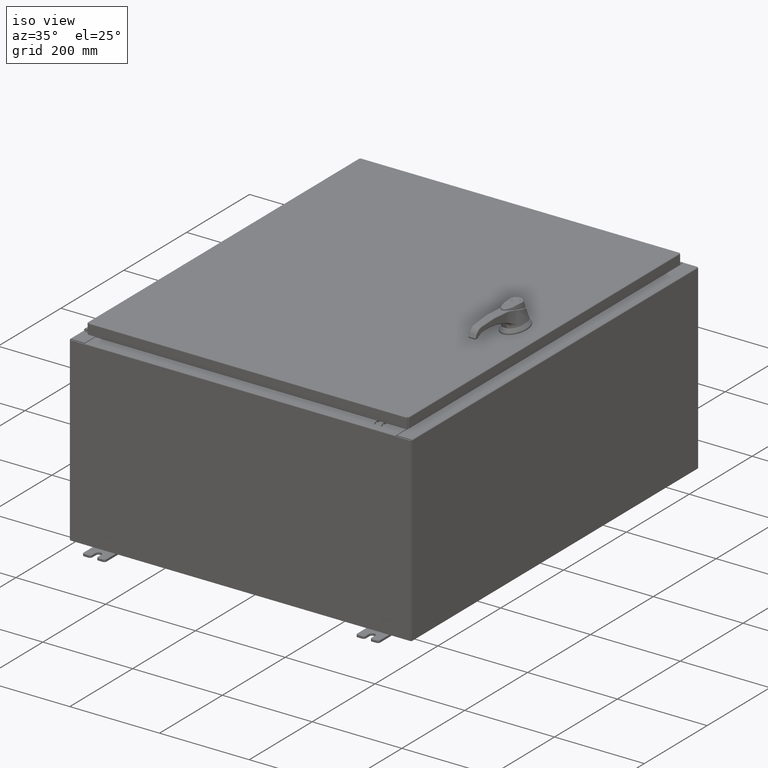
[diagram: clean part render]
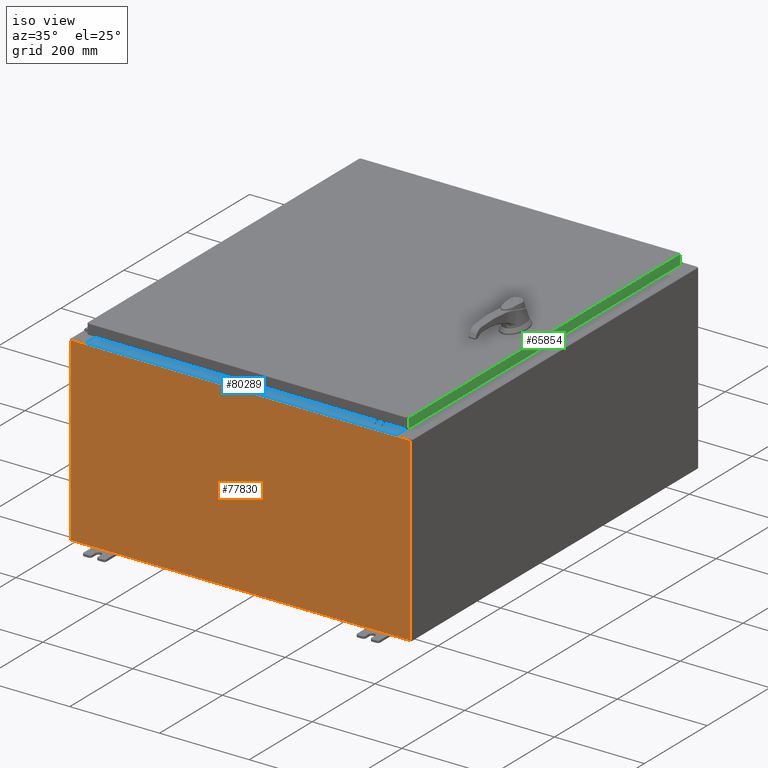
[diagram: same view with three faces highlighted in distinct colors, each labeled with its STEP entity id]
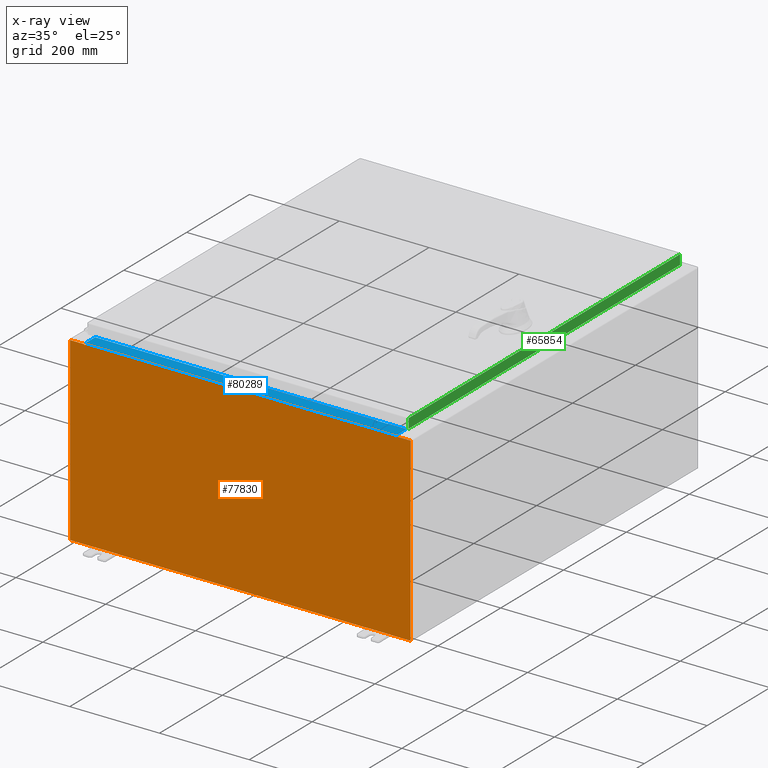
[diagram: x-ray of the same camera — body ghosted, the three highlighted faces saturated]
A machine part, iso view with three faces highlighted in distinct colors.
The next image is the same camera in x-ray (body ghosted, the three faces saturated) — at least one of them is partly hidden behind the body in this view.
Their STEP definitions:

[orange] entity #77830 — the highlighted planar face has unit normal (-0, 1, -0).
#260 = FACE_OUTER_BOUND ( 'NONE', #9740, .T. ) ;
#3716 = VERTEX_POINT ( 'NONE', #99652 ) ;
#3999 = VECTOR ( 'NONE', #114337, 39.37007874015748100 ) ;
#5155 = CARTESIAN_POINT ( 'NONE',  ( -14.92529999999999800, 0.0000000000000000000, -7.925300000000000000 ) ) ;
#6996 = LINE ( 'NONE', #56802, #3999 ) ;
#9157 = AXIS2_PLACEMENT_3D ( 'NONE', #63064, #33752, #83668 ) ;
#9740 = EDGE_LOOP ( 'NONE', ( #45141, #105389, #81319, #95798, #88297, #58823, #81823, #39277, #124209, #36007, #10718, #80435 ) ) ;
#10718 = ORIENTED_EDGE ( 'NONE', *, *, #99768, .T. ) ;
#10834 = DIRECTION ( 'NONE',  ( -0.0000000000000000000, 1.000000000000000000, -0.0000000000000000000 ) ) ;
#11385 = VERTEX_POINT ( 'NONE', #39092 ) ;
#11734 = AXIS2_PLACEMENT_3D ( 'NONE', #68276, #10834, #77952 ) ;
#11782 = EDGE_CURVE ( 'NONE', #48736, #18760, #51756, .T. ) ;
#12786 = DIRECTION ( 'NONE',  ( 0.0000000000000000000, -0.0000000000000000000, -1.000000000000000000 ) ) ;
#13064 = EDGE_CURVE ( 'NONE', #115690, #48736, #75617, .T. ) ;
#14285 = LINE ( 'NONE', #46965, #110357 ) ;
#16008 = EDGE_CURVE ( 'NONE', #26242, #20152, #81419, .T. ) ;
#18760 = VERTEX_POINT ( 'NONE', #27428 ) ;
#20152 = VERTEX_POINT ( 'NONE', #28428 ) ;
#24246 = CARTESIAN_POINT ( 'NONE',  ( 14.92530000000000200, 0.0000000000000000000, 7.925299999999997300 ) ) ;
#26242 = VERTEX_POINT ( 'NONE', #93141 ) ;
#27428 = CARTESIAN_POINT ( 'NONE',  ( 13.63720000000000400, 0.0000000000000000000, 7.912299999999999200 ) ) ;
#28428 = CARTESIAN_POINT ( 'NONE',  ( -13.67454999999999500, 0.0000000000000000000, 7.874949999999999200 ) ) ;
#33752 = DIRECTION ( 'NONE',  ( -0.0000000000000000000, 1.000000000000000000, -0.0000000000000000000 ) ) ;
#33968 = CARTESIAN_POINT ( 'NONE',  ( -13.63719999999999600, 3.756290991288361700E-016, 7.912300000000006300 ) ) ;
#34549 = EDGE_CURVE ( 'NONE', #86356, #11385, #121383, .T. ) ;
#36007 = ORIENTED_EDGE ( 'NONE', *, *, #110642, .T. ) ;
#36162 = VERTEX_POINT ( 'NONE', #57276 ) ;
#36752 = DIRECTION ( 'NONE',  ( -0.0000000000000000000, -0.0000000000000000000, 1.000000000000000000 ) ) ;
#37190 = DIRECTION ( 'NONE',  ( 0.0000000000000000000, 0.0000000000000000000, 1.000000000000000000 ) ) ;
#39092 = CARTESIAN_POINT ( 'NONE',  ( 14.92530000000000200, 0.0000000000000000000, -7.925300000000000000 ) ) ;
#39277 = ORIENTED_EDGE ( 'NONE', *, *, #84626, .T. ) ;
#39377 = CARTESIAN_POINT ( 'NONE',  ( 13.63720000000000400, 0.0000000000000000000, 0.0000000000000000000 ) ) ;
#39436 = LINE ( 'NONE', #82398, #58899 ) ;
#44250 = DIRECTION ( 'NONE',  ( 1.000000000000000000, 0.0000000000000000000, -7.321388497823864400E-017 ) ) ;
#45141 = ORIENTED_EDGE ( 'NONE', *, *, #88946, .F. ) ;
#46414 = CARTESIAN_POINT ( 'NONE',  ( -14.92529999999999800, 0.0000000000000000000, 7.925300000000000000 ) ) ;
#46721 = VECTOR ( 'NONE', #72215, 39.37007874015748100 ) ;
#46965 = CARTESIAN_POINT ( 'NONE',  ( -13.63719999999999800, 3.756290991288361700E-016, 7.912300000000006300 ) ) ;
#48374 = AXIS2_PLACEMENT_3D ( 'NONE', #118084, #70224, #12786 ) ;
#48736 = VERTEX_POINT ( 'NONE', #119936 ) ;
#49716 = LINE ( 'NONE', #5155, #46721 ) ;
#51756 = LINE ( 'NONE', #39377, #80292 ) ;
#51994 = DIRECTION ( 'NONE',  ( 1.000000000000000000, 0.0000000000000000000, -7.321388497823864400E-017 ) ) ;
#53900 = CARTESIAN_POINT ( 'NONE',  ( 13.67455000000000200, 0.0000000000000000000, 7.874949999999999200 ) ) ;
#55591 = LINE ( 'NONE', #76767, #106740 ) ;
#56802 = CARTESIAN_POINT ( 'NONE',  ( -13.67454999999999500, -0.0000000000000000000, 0.0000000000000000000 ) ) ;
#57058 = CARTESIAN_POINT ( 'NONE',  ( -13.67454999999999500, 0.0000000000000000000, 7.925300000000000000 ) ) ;
#57276 = CARTESIAN_POINT ( 'NONE',  ( -14.92529999999999800, 0.0000000000000000000, 7.925300000000000000 ) ) ;
#57501 = VECTOR ( 'NONE', #59767, 39.37007874015748100 ) ;
#57972 = LINE ( 'NONE', #80544, #80500 ) ;
#58823 = ORIENTED_EDGE ( 'NONE', *, *, #13064, .F. ) ;
#58899 = VECTOR ( 'NONE', #44250, 39.37007874015748100 ) ;
#59767 = DIRECTION ( 'NONE',  ( -4.340572780400193600E-014, 0.0000000000000000000, -1.000000000000000000 ) ) ;
#60535 = PLANE ( 'NONE',  #48374 ) ;
#62070 = EDGE_CURVE ( 'NONE', #36162, #116120, #39436, .T. ) ;
#63064 = CARTESIAN_POINT ( 'NONE',  ( 13.65587500000000200, 0.0000000000000000000, 7.874949999999999200 ) ) ;
#64532 = VECTOR ( 'NONE', #36752, 39.37007874015748100 ) ;
#67120 = DIRECTION ( 'NONE',  ( 0.0000000000000000000, 0.0000000000000000000, -1.000000000000000000 ) ) ;
#67764 = EDGE_CURVE ( 'NONE', #80837, #18760, #14285, .T. ) ;
#68276 = CARTESIAN_POINT ( 'NONE',  ( -13.65587499999999600, 0.0000000000000000000, 7.874949999999999200 ) ) ;
#70224 = DIRECTION ( 'NONE',  ( 0.0000000000000000000, -1.000000000000000000, 0.0000000000000000000 ) ) ;
#71113 = EDGE_CURVE ( 'NONE', #82205, #115690, #108583, .T. ) ;
#72215 = DIRECTION ( 'NONE',  ( -1.000000000000000000, -0.0000000000000000000, -0.0000000000000000000 ) ) ;
#73303 = VECTOR ( 'NONE', #120289, 39.37007874015748100 ) ;
#75617 = CIRCLE ( 'NONE', #9157, 0.01867499999999949400 ) ;
#76767 = CARTESIAN_POINT ( 'NONE',  ( -13.63719999999999600, -0.0000000000000000000, 0.0000000000000000000 ) ) ;
#77830 = ADVANCED_FACE ( 'NONE', ( #260 ), #60535, .F. ) ;
#77952 = DIRECTION ( 'NONE',  ( 0.0000000000000000000, 0.0000000000000000000, -1.000000000000000000 ) ) ;
#80292 = VECTOR ( 'NONE', #37190, 39.37007874015748100 ) ;
#80435 = ORIENTED_EDGE ( 'NONE', *, *, #62070, .T. ) ;
#80500 = VECTOR ( 'NONE', #51994, 39.37007874015748100 ) ;
#80544 = CARTESIAN_POINT ( 'NONE',  ( -14.92529999999999800, 0.0000000000000000000, 7.925300000000000000 ) ) ;
#80837 = VERTEX_POINT ( 'NONE', #33968 ) ;
#81319 = ORIENTED_EDGE ( 'NONE', *, *, #123291, .F. ) ;
#81419 = CIRCLE ( 'NONE', #11734, 0.01867499999999949400 ) ;
#81823 = ORIENTED_EDGE ( 'NONE', *, *, #71113, .F. ) ;
#82205 = VERTEX_POINT ( 'NONE', #101665 ) ;
#82398 = CARTESIAN_POINT ( 'NONE',  ( -14.92529999999999800, 0.0000000000000000000, 7.925300000000000000 ) ) ;
#83668 = DIRECTION ( 'NONE',  ( 0.0000000000000000000, 0.0000000000000000000, -1.000000000000000000 ) ) ;
#84626 = EDGE_CURVE ( 'NONE', #82205, #86356, #57972, .T. ) ;
#86356 = VERTEX_POINT ( 'NONE', #115166 ) ;
#88297 = ORIENTED_EDGE ( 'NONE', *, *, #11782, .F. ) ;
#88946 = EDGE_CURVE ( 'NONE', #20152, #116120, #6996, .T. ) ;
#93141 = CARTESIAN_POINT ( 'NONE',  ( -13.63719999999999600, -0.0000000000000000000, 7.874949999999999200 ) ) ;
#95798 = ORIENTED_EDGE ( 'NONE', *, *, #67764, .T. ) ;
#99652 = CARTESIAN_POINT ( 'NONE',  ( -14.92529999999999800, 0.0000000000000000000, -7.925300000000000000 ) ) ;
#99768 = EDGE_CURVE ( 'NONE', #3716, #36162, #115659, .T. ) ;
#101665 = CARTESIAN_POINT ( 'NONE',  ( 13.67455000000000400, 0.0000000000000000000, 7.925299999999997300 ) ) ;
#105389 = ORIENTED_EDGE ( 'NONE', *, *, #16008, .F. ) ;
#106740 = VECTOR ( 'NONE', #67120, 39.37007874015748100 ) ;
#108583 = LINE ( 'NONE', #117285, #57501 ) ;
#110357 = VECTOR ( 'NONE', #114074, 39.37007874015748100 ) ;
#110642 = EDGE_CURVE ( 'NONE', #11385, #3716, #49716, .T. ) ;
#114074 = DIRECTION ( 'NONE',  ( 1.000000000000000000, 0.0000000000000000000, 0.0000000000000000000 ) ) ;
#114337 = DIRECTION ( 'NONE',  ( 0.0000000000000000000, 0.0000000000000000000, 1.000000000000000000 ) ) ;
#115166 = CARTESIAN_POINT ( 'NONE',  ( 14.92530000000000200, 0.0000000000000000000, 7.925299999999997300 ) ) ;
#115659 = LINE ( 'NONE', #46414, #64532 ) ;
#115690 = VERTEX_POINT ( 'NONE', #53900 ) ;
#116120 = VERTEX_POINT ( 'NONE', #57058 ) ;
#117285 = CARTESIAN_POINT ( 'NONE',  ( 13.67454999999966100, -0.0000000000000000000, -5.935537951421999000E-013 ) ) ;
#118084 = CARTESIAN_POINT ( 'NONE',  ( 0.0000000000000000000, 0.0000000000000000000, 0.0000000000000000000 ) ) ;
#119936 = CARTESIAN_POINT ( 'NONE',  ( 13.63720000000000400, 0.0000000000000000000, 7.874949999999999200 ) ) ;
#120289 = DIRECTION ( 'NONE',  ( 0.0000000000000000000, 0.0000000000000000000, -1.000000000000000000 ) ) ;
#121383 = LINE ( 'NONE', #24246, #73303 ) ;
#123291 = EDGE_CURVE ( 'NONE', #80837, #26242, #55591, .T. ) ;
#124209 = ORIENTED_EDGE ( 'NONE', *, *, #34549, .T. ) ;

[blue] entity #80289 — the highlighted planar face has unit normal (-0, -0, 1).
#5157 = DIRECTION ( 'NONE',  ( -0.0000000000000000000, 1.000000000000000000, -3.566381192773190000E-015 ) ) ;
#7115 = DIRECTION ( 'NONE',  ( -0.0000000000000000000, -1.000000000000000000, 3.566381192773190000E-015 ) ) ;
#8881 = FACE_OUTER_BOUND ( 'NONE', #97955, .T. ) ;
#10869 = CARTESIAN_POINT ( 'NONE',  ( -13.63719999999999800, -1.287299999999999400, 8.000000000000003600 ) ) ;
#13596 = LINE ( 'NONE', #62550, #39153 ) ;
#16115 = CARTESIAN_POINT ( 'NONE',  ( 6.405177647445352000E-016, 2.852545452309694500E-014, 7.999999999999999100 ) ) ;
#19348 = EDGE_CURVE ( 'NONE', #69259, #94763, #13596, .T. ) ;
#25747 = DIRECTION ( 'NONE',  ( 0.0000000000000000000, -1.000000000000000000, 3.566381192773190000E-015 ) ) ;
#26571 = CARTESIAN_POINT ( 'NONE',  ( 6.299767562217697500E-016, -0.08769999999999862600, 7.999999999999999100 ) ) ;
#27000 = VECTOR ( 'NONE', #36191, 39.37007874015748100 ) ;
#28219 = EDGE_CURVE ( 'NONE', #55927, #69259, #50134, .T. ) ;
#35787 = VECTOR ( 'NONE', #7115, 39.37007874015748100 ) ;
#36191 = DIRECTION ( 'NONE',  ( -1.000000000000000000, 1.201939398262515800E-016, 8.012929321750060900E-017 ) ) ;
#39153 = VECTOR ( 'NONE', #5157, 39.37007874015748100 ) ;
#40461 = AXIS2_PLACEMENT_3D ( 'NONE', #16115, #83209, #25747 ) ;
#49219 = CARTESIAN_POINT ( 'NONE',  ( 13.63720000000000400, -1.287300000000000300, 8.000000000000001800 ) ) ;
#50134 = LINE ( 'NONE', #115708, #98209 ) ;
#54344 = EDGE_CURVE ( 'NONE', #96019, #55927, #112350, .T. ) ;
#55927 = VERTEX_POINT ( 'NONE', #49219 ) ;
#62550 = CARTESIAN_POINT ( 'NONE',  ( -13.63719999999999800, -0.07469999999999973900, 8.000000000000000000 ) ) ;
#67880 = ORIENTED_EDGE ( 'NONE', *, *, #28219, .F. ) ;
#69259 = VERTEX_POINT ( 'NONE', #10869 ) ;
#73532 = PLANE ( 'NONE',  #40461 ) ;
#75001 = CARTESIAN_POINT ( 'NONE',  ( -13.63719999999999800, -0.08769999999999862600, 8.000000000000000000 ) ) ;
#75385 = ORIENTED_EDGE ( 'NONE', *, *, #95950, .T. ) ;
#80289 = ADVANCED_FACE ( 'NONE', ( #8881 ), #73532, .T. ) ;
#83209 = DIRECTION ( 'NONE',  ( 8.012929321750104000E-017, 3.566381192773190000E-015, 1.000000000000000000 ) ) ;
#84689 = ORIENTED_EDGE ( 'NONE', *, *, #19348, .F. ) ;
#94763 = VERTEX_POINT ( 'NONE', #75001 ) ;
#95950 = EDGE_CURVE ( 'NONE', #96019, #94763, #103583, .T. ) ;
#96019 = VERTEX_POINT ( 'NONE', #113793 ) ;
#96431 = DIRECTION ( 'NONE',  ( -1.000000000000000000, 0.0000000000000000000, 0.0000000000000000000 ) ) ;
#97955 = EDGE_LOOP ( 'NONE', ( #84689, #67880, #123800, #75385 ) ) ;
#98209 = VECTOR ( 'NONE', #96431, 39.37007874015748100 ) ;
#103583 = LINE ( 'NONE', #26571, #27000 ) ;
#112350 = LINE ( 'NONE', #122061, #35787 ) ;
#113793 = CARTESIAN_POINT ( 'NONE',  ( 13.63720000000000400, -0.08769999999999829300, 7.999999999999997300 ) ) ;
#115708 = CARTESIAN_POINT ( 'NONE',  ( 13.63720000000000400, -1.287300000000000300, 8.000000000000003600 ) ) ;
#122061 = CARTESIAN_POINT ( 'NONE',  ( 13.63720000000000400, -1.300299999999999800, 8.000000000000001800 ) ) ;
#123800 = ORIENTED_EDGE ( 'NONE', *, *, #54344, .F. ) ;

[green] entity #65854 — the highlighted planar face has unit normal (1, 0, 0).
#1672 = ORIENTED_EDGE ( 'NONE', *, *, #26851, .T. ) ;
#5961 = AXIS2_PLACEMENT_3D ( 'NONE', #101501, #111105, #53594 ) ;
#7799 = CARTESIAN_POINT ( 'NONE',  ( 14.07799999999999400, 17.00515786437627200, 1.546586040496592500E-013 ) ) ;
#12082 = VERTEX_POINT ( 'NONE', #59335 ) ;
#22515 = VECTOR ( 'NONE', #40781, 39.37007874015748100 ) ;
#23713 = DIRECTION ( 'NONE',  ( 0.0000000000000000000, -1.000000000000000000, 0.0000000000000000000 ) ) ;
#26851 = EDGE_CURVE ( 'NONE', #12082, #85296, #29333, .T. ) ;
#27525 = DIRECTION ( 'NONE',  ( -2.532419924601866100E-015, -6.982962677686265900E-015, 1.000000000000000000 ) ) ;
#29333 = LINE ( 'NONE', #7799, #102901 ) ;
#34319 = PLANE ( 'NONE',  #5961 ) ;
#38708 = DIRECTION ( 'NONE',  ( 0.0000000000000000000, -1.000000000000000000, 0.0000000000000000000 ) ) ;
#40781 = DIRECTION ( 'NONE',  ( -2.532419924601866100E-015, -6.982962677686265900E-015, 1.000000000000000000 ) ) ;
#48039 = LINE ( 'NONE', #69281, #22515 ) ;
#53594 = DIRECTION ( 'NONE',  ( 2.532419924601866100E-015, 0.0000000000000000000, -1.000000000000000000 ) ) ;
#59185 = ORIENTED_EDGE ( 'NONE', *, *, #89195, .F. ) ;
#59335 = CARTESIAN_POINT ( 'NONE',  ( 14.07799999999999600, 17.00515786437627600, -0.9376999999999997600 ) ) ;
#65854 = ADVANCED_FACE ( 'NONE', ( #103180 ), #34319, .T. ) ;
#67751 = EDGE_LOOP ( 'NONE', ( #77857, #59185, #1672, #121091 ) ) ;
#68483 = EDGE_CURVE ( 'NONE', #85296, #101795, #119279, .T. ) ;
#68658 = CARTESIAN_POINT ( 'NONE',  ( 14.07799999999999400, -17.00515786437626900, -0.08770000000000008300 ) ) ;
#69281 = CARTESIAN_POINT ( 'NONE',  ( 14.07799999999999400, -17.00515786437626900, -0.07469999999999980800 ) ) ;
#71885 = CARTESIAN_POINT ( 'NONE',  ( 14.07799999999999400, 0.0000000000000000000, -0.08770000000000008300 ) ) ;
#74678 = EDGE_CURVE ( 'NONE', #97355, #101795, #48039, .T. ) ;
#77857 = ORIENTED_EDGE ( 'NONE', *, *, #74678, .F. ) ;
#85296 = VERTEX_POINT ( 'NONE', #116622 ) ;
#86547 = CARTESIAN_POINT ( 'NONE',  ( 14.07799999999999600, -17.09400000000000100, -0.9376999999999997600 ) ) ;
#89195 = EDGE_CURVE ( 'NONE', #12082, #97355, #113536, .T. ) ;
#93803 = VECTOR ( 'NONE', #23713, 39.37007874015748100 ) ;
#97355 = VERTEX_POINT ( 'NONE', #99925 ) ;
#99925 = CARTESIAN_POINT ( 'NONE',  ( 14.07799999999999600, -17.00515786437626200, -0.9376999999999997600 ) ) ;
#101501 = CARTESIAN_POINT ( 'NONE',  ( 14.07799999999999400, 0.0000000000000000000, 3.591222135455663800E-014 ) ) ;
#101795 = VERTEX_POINT ( 'NONE', #68658 ) ;
#102901 = VECTOR ( 'NONE', #27525, 39.37007874015748100 ) ;
#103180 = FACE_OUTER_BOUND ( 'NONE', #67751, .T. ) ;
#110506 = VECTOR ( 'NONE', #38708, 39.37007874015748100 ) ;
#111105 = DIRECTION ( 'NONE',  ( 1.000000000000000000, 0.0000000000000000000, 2.532419924601866100E-015 ) ) ;
#113536 = LINE ( 'NONE', #86547, #110506 ) ;
#116622 = CARTESIAN_POINT ( 'NONE',  ( 14.07799999999999400, 17.00515786437626900, -0.08770000000000008300 ) ) ;
#119279 = LINE ( 'NONE', #71885, #93803 ) ;
#121091 = ORIENTED_EDGE ( 'NONE', *, *, #68483, .T. ) ;